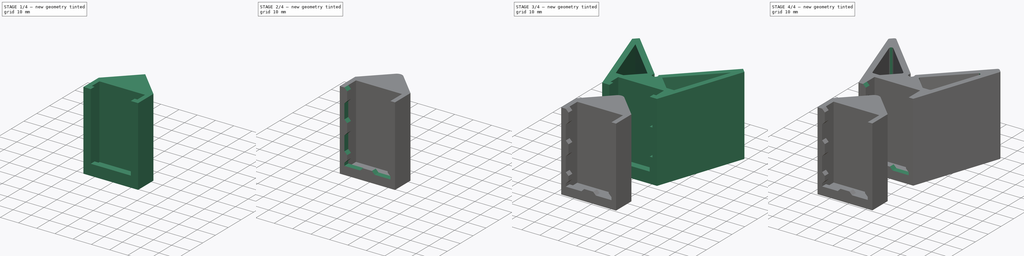
[diagram: build sequence overview — one tinted view per stage of 4, left to right]
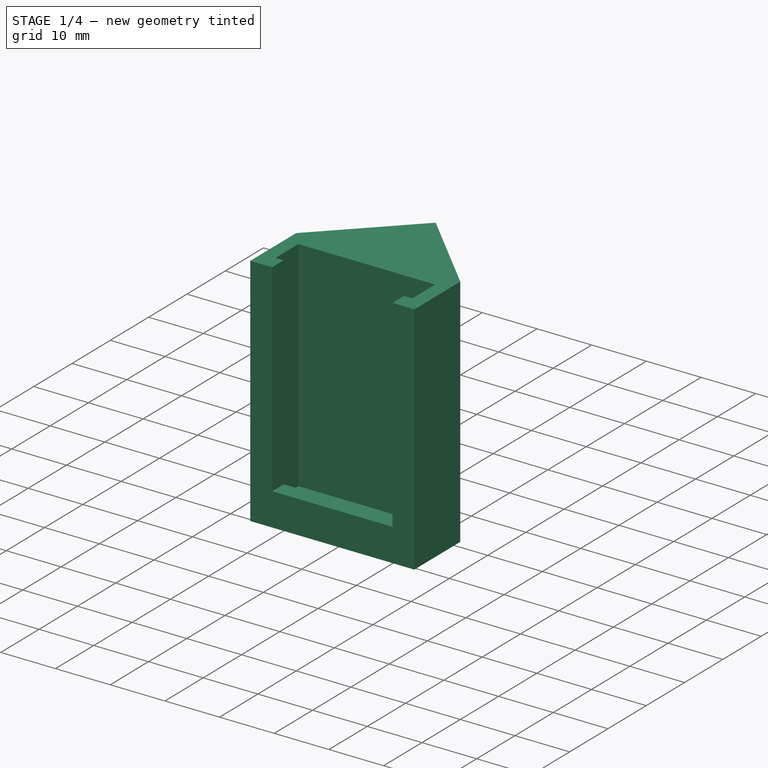
[diagram: stage 1 of 4 — iso view after this stage's code; geometry added in this stage tinted green]
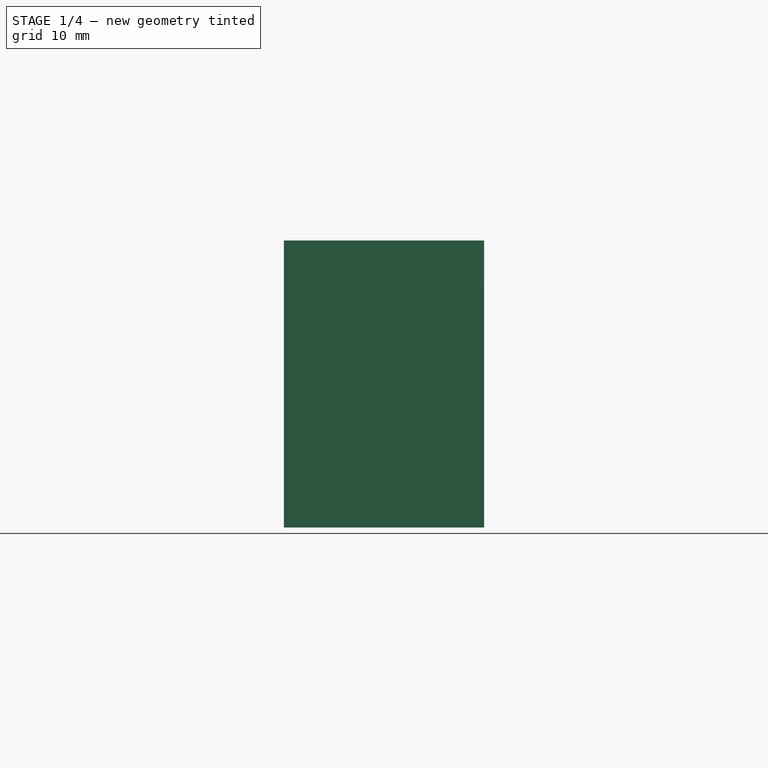
[diagram: stage 1 of 4 — front view after this stage's code; geometry added in this stage tinted green]
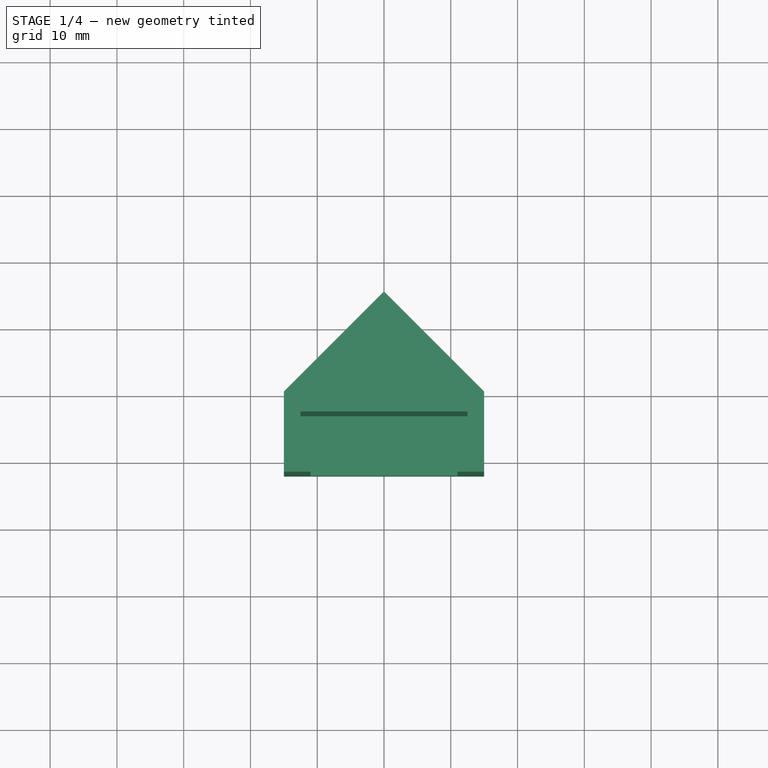
[diagram: stage 1 of 4 — top view after this stage's code; geometry added in this stage tinted green]
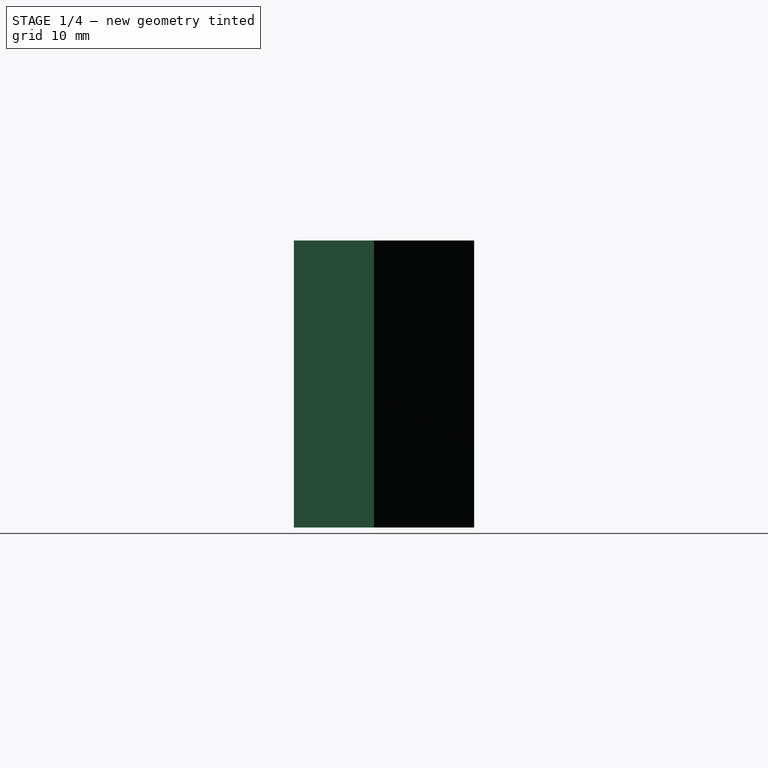
[diagram: stage 1 of 4 — right view after this stage's code; geometry added in this stage tinted green]
FCSTD DOCUMENT  (FreeCAD 0.18R16131 (Git))
Label: clamp
License: All rights reserved
LicenseURL: http://en.wikipedia.org/wiki/All_rights_reserved
objects: Sketcher::SketchObject×9, PartDesign::Pocket×7, PartDesign::Pad×2, PartDesign::Body×2, Part::Chamfer×2, Part::Fillet×2
note: 33 computed .brp shape members not serialized (recipe doc carries the construction recipe); baked Part::Feature solids carry a one-line shape summary decoded from their .brp

FEATURE [Sketcher::SketchObject] Sketch003
  MapMode = 5
  Support = -> [XY_Plane001]
  sketch-geometry (5):
    g0: LineSegment StartX=-15 StartY=-32 StartZ=0 EndX=15 EndY=-32 EndZ=0
    g1: LineSegment StartX=15 StartY=-32 StartZ=0 EndX=15 EndY=-20 EndZ=0
    g2: LineSegment StartX=15 StartY=-20 StartZ=0 EndX=0 EndY=-5 EndZ=0
    g3: LineSegment StartX=0 StartY=-5 StartZ=0 EndX=-15 EndY=-20 EndZ=0
    g4: LineSegment StartX=-15 StartY=-20 StartZ=0 EndX=-15 EndY=-32 EndZ=0
  constraints (13):
    c: Coincident(g0,g1)
    c: Vertical(g1)
    c: Coincident(g1,g2)
    c: PointOnObject(g2,g-2)
    c: Coincident(g2,g3)
    c: Coincident(g3,g4)
    c: Coincident(g4,g0)
    c: Symmetric(g1,g3,g-2)
    c: Symmetric(g0,g0,g-2)
    c: DistanceX(g0,g0) = 30
    c: DistanceY(g1,g1) = 12
    c: DistanceY(g2,g-1) = 5
    c: Angle(g3,g2) = 1.5708
FEATURE [PartDesign::Pad] Pad001
  Length = 43
  Length2 = 100
  Profile = -> Sketch003
  Type = 0
FEATURE [Sketcher::SketchObject] Sketch004
  ExternalGeometry = -> [Pad001]
  MapMode = 5
  Placement = pos=(0,0,43) rot=(0,0,1;0rad)
  Support = -> [Pad001]
  sketch-geometry (8):
    g0: LineSegment StartX=-11 StartY=-32 StartZ=0 EndX=-11 EndY=-29 EndZ=0
    g1: LineSegment StartX=-11 StartY=-29 StartZ=0 EndX=-12.5 EndY=-29 EndZ=0
    g2: LineSegment StartX=-12.5 StartY=-29 StartZ=0 EndX=-12.5 EndY=-23 EndZ=0
    g3: LineSegment StartX=-12.5 StartY=-23 StartZ=0 EndX=12.5 EndY=-23 EndZ=0
    g4: LineSegment StartX=12.5 StartY=-23 StartZ=0 EndX=12.5 EndY=-29 EndZ=0
    g5: LineSegment StartX=12.5 StartY=-29 StartZ=0 EndX=11 EndY=-29 EndZ=0
    g6: LineSegment StartX=11 StartY=-29 StartZ=0 EndX=11 EndY=-32 EndZ=0
    g7: LineSegment StartX=11 StartY=-32 StartZ=0 EndX=-11 EndY=-32 EndZ=0
  constraints (20):
    c: PointOnObject(g0,g-4)
    c: Coincident(g0,g1)
    c: Coincident(g1,g2)
    c: Coincident(g2,g3)
    c: Coincident(g3,g4)
    c: Coincident(g4,g5)
    c: Coincident(g5,g6)
    c: Coincident(g6,g7)
    c: Coincident(g7,g0)
    c: Symmetric(g5,g0,g-2)
    c: Symmetric(g4,g1,g-2)
    c: Symmetric(g3,g2,g-2)
    c: Symmetric(g0,g6,g-2)
    c: Vertical(g6)
    c: Vertical(g4)
    c: Horizontal(g5)
    c: DistanceY(g4,g4) = 6
    c: DistanceY(g6,g6) = 3
    c: DistanceX(g3,g3) = 25
    c: DistanceX(g5,g5) = 1.5
FEATURE [PartDesign::Pocket] Pocket002
  BaseFeature = -> Pad001
  Length = 37
  Length2 = 100
  Profile = -> Sketch004
  Type = 0
FEATURE [Sketcher::SketchObject] Sketch007
  ExternalGeometry = -> [Pocket002]
  MapMode = 5
  Placement = pos=(0,0,6) rot=(0,0,1;0rad)
  Support = -> [Pocket002]
  sketch-geometry (4):
    g0: LineSegment StartX=-12.5 StartY=-23 StartZ=0 EndX=12.5 EndY=-23 EndZ=0
    g1: LineSegment StartX=12.5 StartY=-23 StartZ=0 EndX=12.5 EndY=-29 EndZ=0
    g2: LineSegment StartX=12.5 StartY=-29 StartZ=0 EndX=-12.5 EndY=-29 EndZ=0
    g3: LineSegment StartX=-12.5 StartY=-29 StartZ=0 EndX=-12.5 EndY=-23 EndZ=0
  constraints (11):
    c: Coincident(g0,g1)
    c: Coincident(g1,g2)
    c: Coincident(g2,g3)
    c: Coincident(g3,g0)
    c: Horizontal(g2)
    c: Vertical(g1)
    c: Vertical(g3)
    c: Symmetric(g0,g0,g-2)
    c: DistanceY(g1,g1) = 6
    c: DistanceY(g-3,g1) = 3
    c: DistanceX(g2,g2) = 25
FEATURE [PartDesign::Pocket] Pocket005
  BaseFeature = -> Pocket002
  Length = 3
  Length2 = 100
  Profile = -> Sketch007
  Type = 0
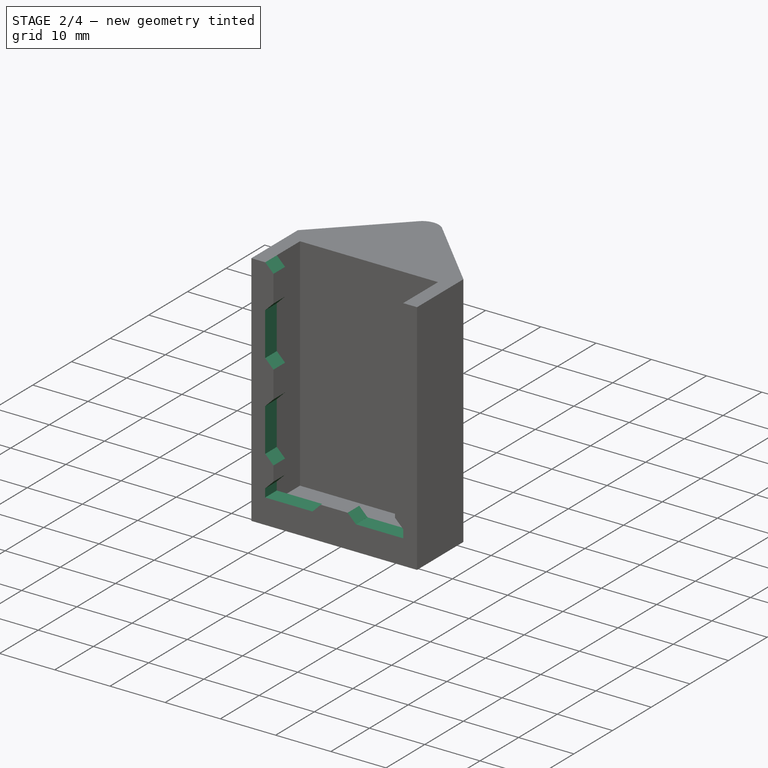
[diagram: stage 2 of 4 — iso view after this stage's code; geometry added in this stage tinted green]
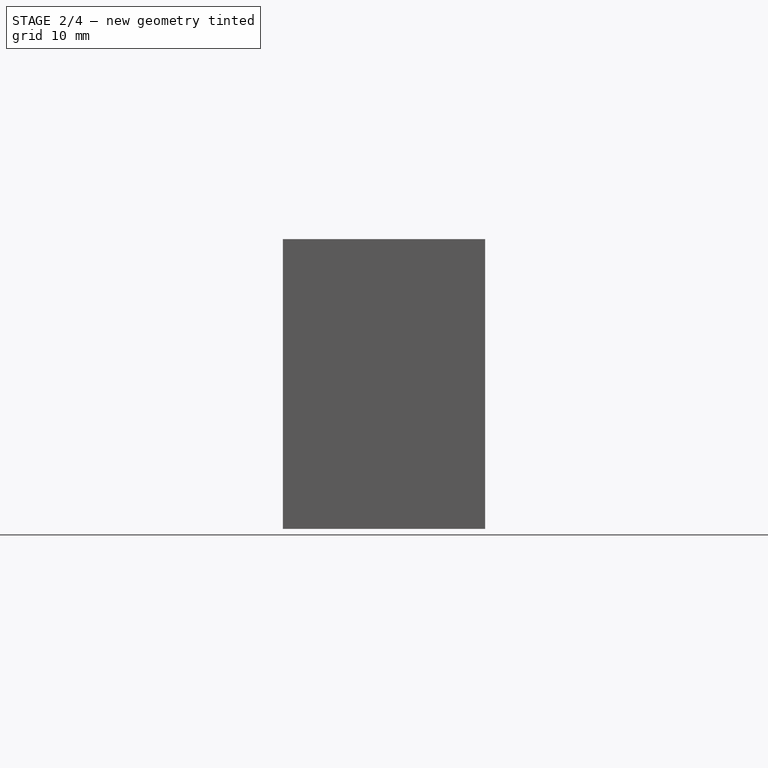
[diagram: stage 2 of 4 — front view after this stage's code; geometry added in this stage tinted green]
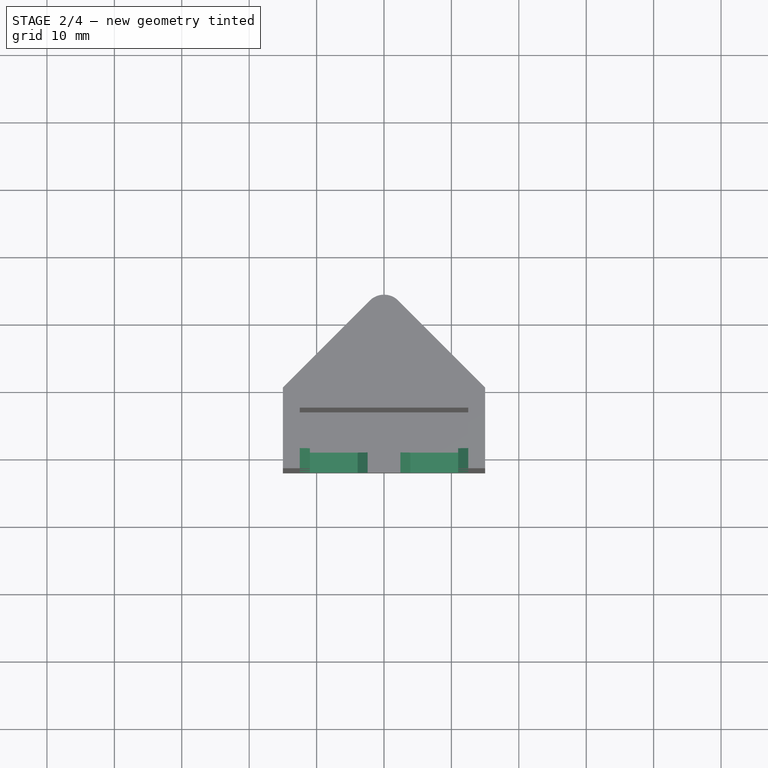
[diagram: stage 2 of 4 — top view after this stage's code; geometry added in this stage tinted green]
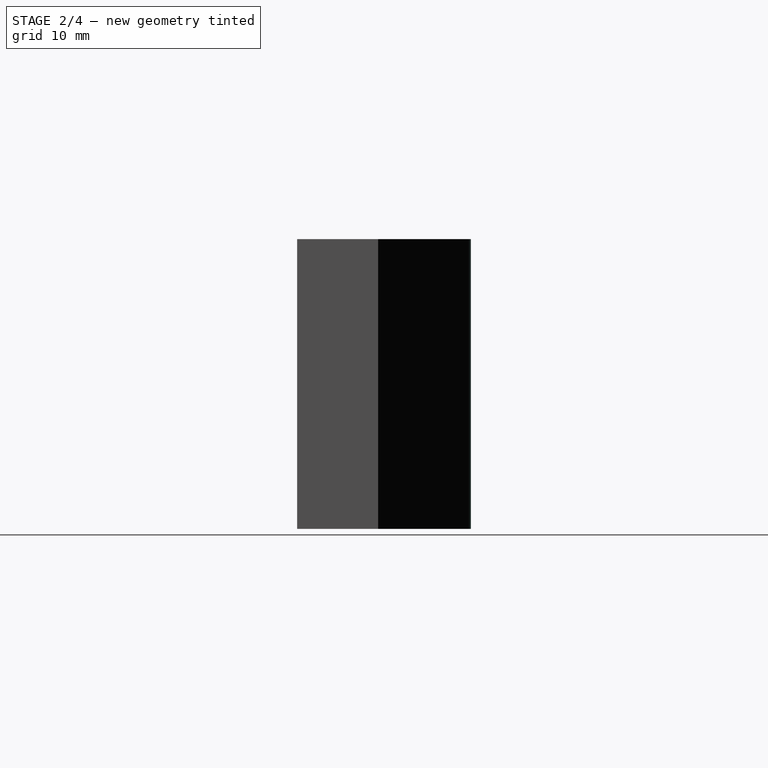
[diagram: stage 2 of 4 — right view after this stage's code; geometry added in this stage tinted green]
FEATURE [Sketcher::SketchObject] Sketch008
  ExternalGeometry = -> [Pocket005]
  MapMode = 5
  Placement = pos=(0,-32,0) rot=(1,0,0;1.5708rad)
  Support = -> [Pocket005]
  sketch-geometry (29):
    g0: LineSegment StartX=-12.5 StartY=35.1573 StartZ=0 EndX=-11 EndY=35.1573 EndZ=0
    g1: LineSegment StartX=-11 StartY=35.1573 StartZ=0 EndX=-11 EndY=27.3146 EndZ=0
    g2: LineSegment StartX=-11 StartY=27.3146 StartZ=0 EndX=-12.5 EndY=27.3146 EndZ=0
    g3: LineSegment StartX=-12.5 StartY=27.3146 StartZ=0 EndX=-12.5 EndY=35.1573 EndZ=0
    g4: LineSegment StartX=-12.5 StartY=19.4719 StartZ=0 EndX=-11 EndY=19.4719 EndZ=0
    g5: LineSegment StartX=-11 StartY=19.4719 StartZ=0 EndX=-11 EndY=11.6292 EndZ=0
    g6: LineSegment StartX=-11 StartY=11.6292 StartZ=0 EndX=-12.5 EndY=11.6292 EndZ=0
    g7: LineSegment StartX=-12.5 StartY=11.6292 StartZ=0 EndX=-12.5 EndY=19.4719 EndZ=0
    g8: LineSegment StartX=12.5 StartY=19.4719 StartZ=0 EndX=11 EndY=19.4719 EndZ=0
    g9: LineSegment StartX=11 StartY=19.4719 StartZ=0 EndX=11 EndY=11.6292 EndZ=0
    g10: LineSegment StartX=11 StartY=11.6292 StartZ=0 EndX=12.5 EndY=11.6292 EndZ=0
    g11: LineSegment StartX=12.5 StartY=11.6292 StartZ=0 EndX=12.5 EndY=19.4719 EndZ=0
    g12: LineSegment StartX=12.5 StartY=35.1573 StartZ=0 EndX=11 EndY=35.1573 EndZ=0
    g13: LineSegment StartX=11 StartY=35.1573 StartZ=0 EndX=11 EndY=27.3146 EndZ=0
    g14: LineSegment StartX=11 StartY=27.3146 StartZ=0 EndX=12.5 EndY=27.3146 EndZ=0
    g15: LineSegment StartX=12.5 StartY=27.3146 StartZ=0 EndX=12.5 EndY=35.1573 EndZ=0
    g16: LineSegment StartX=-3.92135 StartY=6 StartZ=0 EndX=-12.5 EndY=6 EndZ=0
    g17: LineSegment StartX=-12.5 StartY=6 StartZ=0 EndX=-12.5 EndY=4.5 EndZ=0
    g18: LineSegment StartX=-12.5 StartY=4.5 StartZ=0 EndX=-3.92135 EndY=4.5 EndZ=0
    g19: LineSegment StartX=-3.92135 StartY=4.5 StartZ=0 EndX=-3.92135 EndY=6 EndZ=0
    g20: LineSegment StartX=12.5 StartY=4.5 StartZ=0 EndX=3.92135 EndY=4.5 EndZ=0
    g21: LineSegment StartX=3.92135 StartY=4.5 StartZ=0 EndX=3.92135 EndY=6 EndZ=0
    g22: LineSegment StartX=3.92135 StartY=6 StartZ=0 EndX=12.5 EndY=6 EndZ=0
    g23: LineSegment StartX=12.5 StartY=6 StartZ=0 EndX=12.5 EndY=4.5 EndZ=0
    g24: LineSegment [constr] StartX=-11 StartY=43 StartZ=0 EndX=-11 EndY=35.1573 EndZ=0
    g25: LineSegment [constr] StartX=-11 StartY=27.3146 StartZ=0 EndX=-11 EndY=19.4719 EndZ=0
    g26: LineSegment [constr] StartX=11 StartY=43 StartZ=0 EndX=11 EndY=35.1573 EndZ=0
    g27: LineSegment [constr] StartX=11 StartY=27.3146 StartZ=0 EndX=11 EndY=19.4719 EndZ=0
    g28: LineSegment [constr] StartX=-3.92135 StartY=6 StartZ=0 EndX=3.92135 EndY=6 EndZ=0
  constraints (74):
    c: Coincident(g0,g1)
    c: Coincident(g1,g2)
    c: Coincident(g2,g3)
    c: Coincident(g3,g0)
    c: Horizontal(g0)
    c: Horizontal(g2)
    c: Vertical(g3)
    c: Coincident(g4,g5)
    c: Coincident(g5,g6)
    c: Coincident(g6,g7)
    c: Coincident(g7,g4)
    c: Horizontal(g4)
    c: Horizontal(g6)
    c: Vertical(g7)
    c: Coincident(g8,g9)
    c: Coincident(g9,g10)
    c: Coincident(g10,g11)
    c: Coincident(g11,g8)
    c: Horizontal(g10)
    c: Vertical(g11)
    c: Coincident(g12,g13)
    c: Coincident(g13,g14)
    c: Coincident(g14,g15)
    c: Coincident(g15,g12)
    c: Horizontal(g12)
    c: Horizontal(g14)
    c: Vertical(g15)
    c: Coincident(g16,g17)
    c: Coincident(g17,g18)
    c: Coincident(g18,g19)
    c: Coincident(g19,g16)
    c: Horizontal(g16)
    c: Horizontal(g18)
    c: Vertical(g17)
    c: Vertical(g19)
    c: Coincident(g20,g21)
    c: Coincident(g21,g22)
    c: Coincident(g22,g23)
    c: Coincident(g23,g20)
    c: Horizontal(g20)
    c: Horizontal(g22)
    c: Vertical(g21)
    c: Vertical(g23)
    c: Symmetric(g18,g20,g-2)
    c: PointOnObject(g21,g-5)
    c: Tangent(g5,g-3)
    c: Tangent(g1,g-3)
    c: Symmetric(g12,g0,g-2)
    c: Symmetric(g13,g1,g-2)
    c: Symmetric(g8,g4,g-2)
    c: Symmetric(g9,g5,g-2)
    c: Coincident(g24,g-3)
    c: Coincident(g24,g0)
    c: Coincident(g25,g1)
    c: Coincident(g25,g4)
    c: Coincident(g26,g-4)
    c: Coincident(g26,g12)
    c: Coincident(g27,g13)
    c: Coincident(g27,g8)
    c: Equal(g9,g27)
    c: Equal(g27,g13)
    c: Equal(g13,g26)
    c: Equal(g26,g24)
    c: Equal(g24,g1)
    c: Equal(g1,g25)
    c: Equal(g25,g5)
    c: Coincident(g28,g21)
    c: Coincident(g28,g16)
    c: Equal(g28,g5)
    c: Symmetric(g4,g8,g-2)
    c: Symmetric(g2,g14,g-2)
    c: DistanceX(g0,g0) = 1.5
    c: DistanceX(g16,g-5) = 1.5
    c: Symmetric(g22,g16,g-2)
FEATURE [PartDesign::Pocket] Pocket006
  BaseFeature = -> Pocket005
  Length = 3
  Length2 = 100
  Profile = -> Sketch008
  Type = 0
FEATURE [PartDesign::Body] Body  label="piece01"
  Group = -> [Sketch,Pad,Sketch001,Pocket,Sketch002,Pocket001,Sketch005,Pocket003,Sketch006,Pocket004]
  Origin = -> Origin
  Tip = -> Pocket004
FEATURE [Part::Chamfer] Chamfer001
  Base = -> Pocket006
  Edges = 14 edges r=1.49: [Edge42,Edge48,Edge49,Edge55,Edge57,Edge63,Edge65,Edge73,Edge76,Edge84,Edge85,Edge91,Edge93,Edge99]
FEATURE [Part::Fillet] Fillet001  label="final02"
  Base = -> Chamfer001
  Edges = 1 edges r=3: [Edge146]
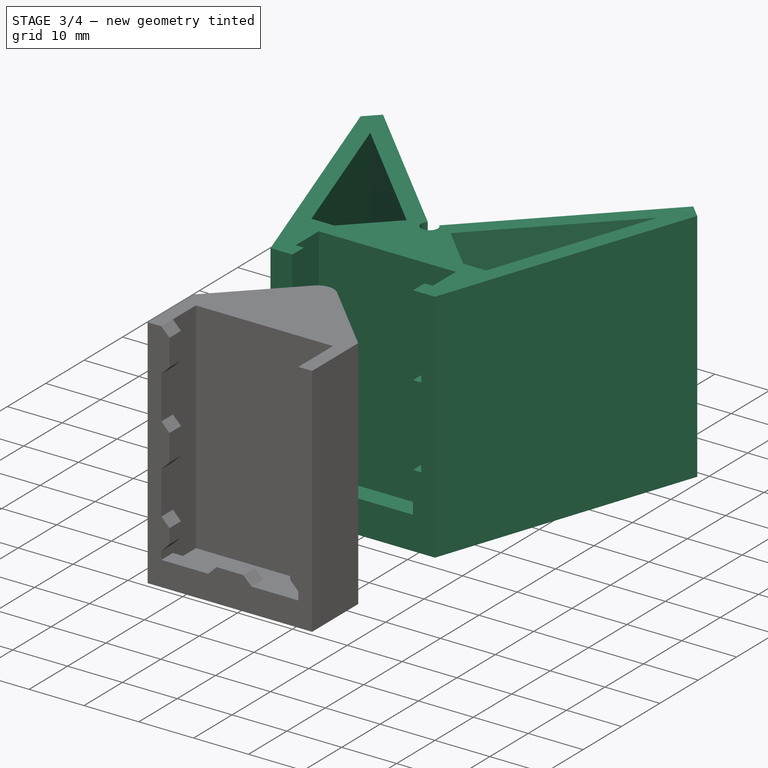
[diagram: stage 3 of 4 — iso view after this stage's code; geometry added in this stage tinted green]
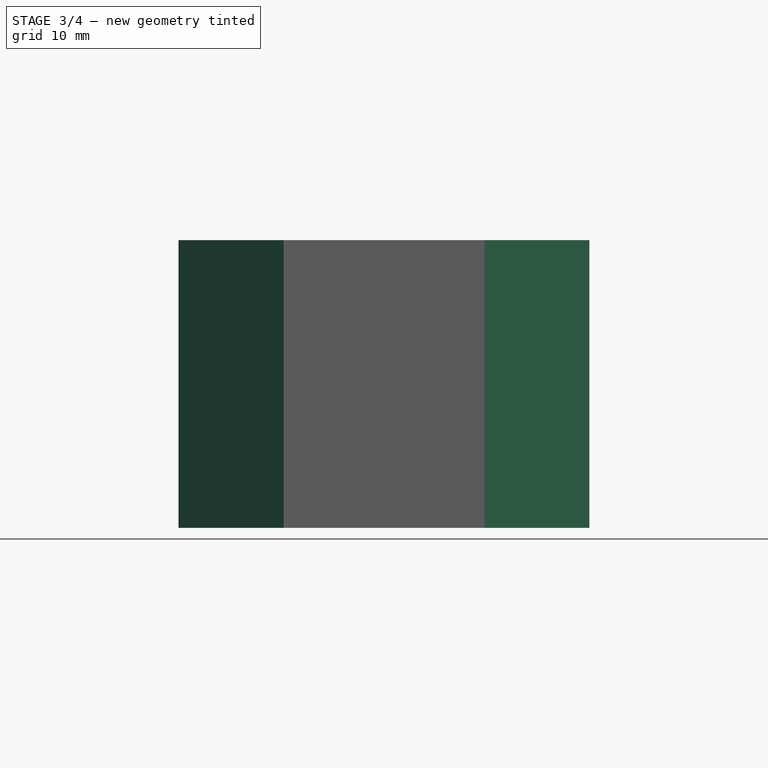
[diagram: stage 3 of 4 — front view after this stage's code; geometry added in this stage tinted green]
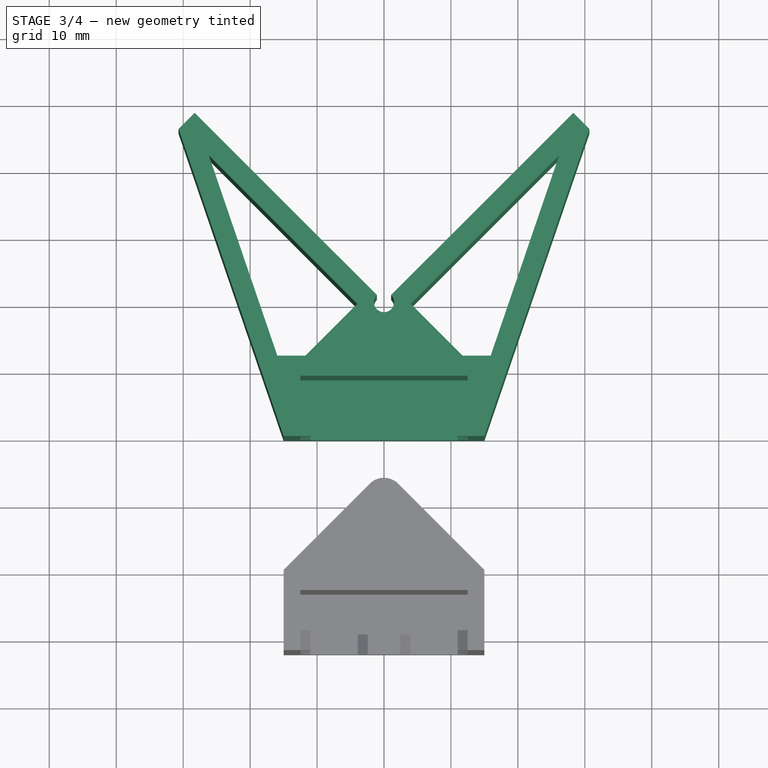
[diagram: stage 3 of 4 — top view after this stage's code; geometry added in this stage tinted green]
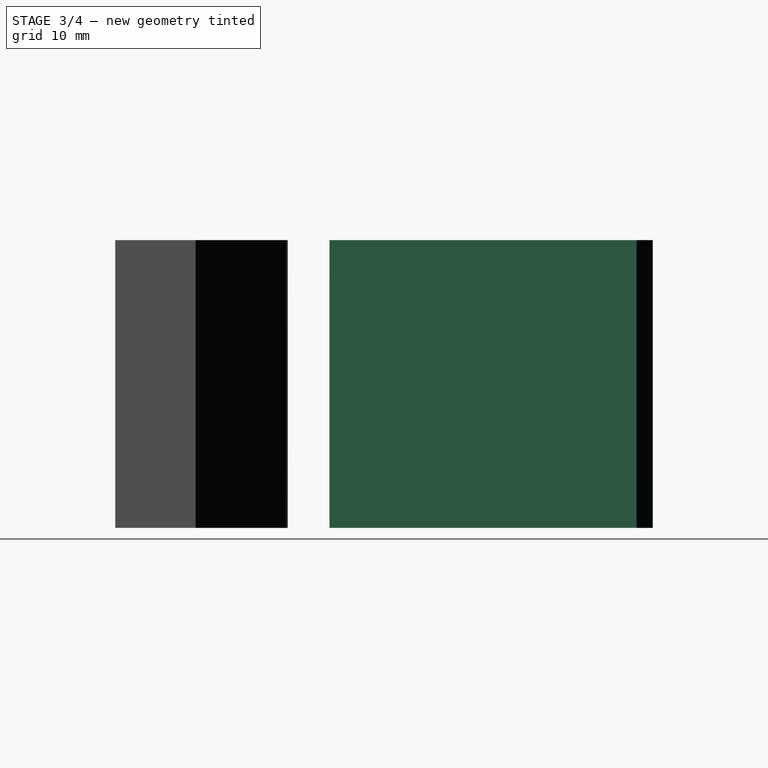
[diagram: stage 3 of 4 — right view after this stage's code; geometry added in this stage tinted green]
FEATURE [PartDesign::Body] Body001  label="piece02"
  Group = -> [Sketch003,Pad001,Sketch004,Pocket002,Sketch007,Pocket005,Sketch008,Pocket006]
  Origin = -> Origin001
  Tip = -> Pocket006
FEATURE [Sketcher::SketchObject] Sketch
  MapMode = 5
  Support = -> [XY_Plane]
  sketch-geometry (21):
    g0: LineSegment StartX=-15 StartY=0 StartZ=0 EndX=15 EndY=0 EndZ=0
    g1: LineSegment StartX=15 StartY=0 StartZ=0 EndX=30.6877 EndY=45.8809 EndZ=0
    g2: LineSegment StartX=30.6877 StartY=45.8809 StartZ=0 EndX=28.2843 EndY=48.2843 EndZ=0
    g3: LineSegment StartX=28.2843 StartY=48.2843 StartZ=0 EndX=1.06066 EndY=21.0607 EndZ=0
    g4: LineSegment StartX=-1.06066 StartY=21.0607 StartZ=0 EndX=-28.2843 EndY=48.2843 EndZ=0
    g5: LineSegment StartX=-28.2843 StartY=48.2843 StartZ=0 EndX=-30.6877 EndY=45.8809 EndZ=0
    g6: LineSegment StartX=-30.6877 StartY=45.8809 StartZ=0 EndX=-15 EndY=0 EndZ=0
    g7: LineSegment [constr] StartX=-1.06066 StartY=21.0607 StartZ=0 EndX=-2e-16 EndY=20 EndZ=0
    g8: LineSegment [constr] StartX=-2e-16 StartY=20 StartZ=0 EndX=1.06066 EndY=21.0607 EndZ=0
    g9: ArcOfCircle CenterX=-2e-16 CenterY=20 CenterZ=0 NormalX=0 NormalY=0 NormalZ=1 AngleXU=0 Radius=1.5 StartAngle=2.35619 EndAngle=7.06858
    g10: LineSegment StartX=-26.163 StartY=41.9203 StartZ=0 EndX=-15.9325 EndY=12 EndZ=0
    g11: LineSegment StartX=-15.9325 StartY=12 StartZ=0 EndX=-11.7574 EndY=12 EndZ=0
    g12: LineSegment StartX=-11.7574 StartY=12 StartZ=0 EndX=-4 EndY=19.7574 EndZ=0
    g13: LineSegment StartX=-4 StartY=19.7574 StartZ=0 EndX=-26.163 EndY=41.9203 EndZ=0
    g14: LineSegment StartX=26.163 StartY=41.9203 StartZ=0 EndX=4 EndY=19.7574 EndZ=0
    g15: LineSegment StartX=4 StartY=19.7574 StartZ=0 EndX=11.7574 EndY=12 EndZ=0
    g16: LineSegment StartX=11.7574 StartY=12 StartZ=0 EndX=15.9325 EndY=12 EndZ=0
    g17: LineSegment StartX=15.9325 StartY=12 StartZ=0 EndX=26.163 EndY=41.9203 EndZ=0
    g18: LineSegment [constr] StartX=-26.163 StartY=41.9203 StartZ=0 EndX=-24.0416 EndY=44.0416 EndZ=0
    g19: LineSegment [constr] StartX=-26.163 StartY=41.9203 StartZ=0 EndX=-29.0016 EndY=40.9497 EndZ=0
    g20: LineSegment [constr] StartX=26.163 StartY=41.9203 StartZ=0 EndX=30.4056 EndY=46.163 EndZ=0
  constraints (54):
    c: Coincident(g0,g1)
    c: Coincident(g1,g2)
    c: Coincident(g2,g3)
    c: Coincident(g4,g5)
    c: Coincident(g5,g6)
    c: Coincident(g6,g0)
    c: Symmetric(g0,g0,g-2)
    c: DistanceX(g0,g0) = 30
    c: Symmetric(g4,g3,g-2)
    c: Symmetric(g2,g4,g-2)
    c: Symmetric(g5,g1,g-2)
    c: Perpendicular(g5,g4)
    c: Perpendicular(g4,g3)
    c: Coincident(g7,g8)
    c: Coincident(g7,g4)
    c: Coincident(g8,g3)
    c: Parallel(g3,g8)
    c: Coincident(g9,g7)
    c: Coincident(g9,g3)
    c: Coincident(g4,g9)
    c: Radius(g9) = 1.5
    c: Coincident(g10,g11)
    c: Coincident(g11,g12)
    c: Coincident(g12,g13)
    c: Coincident(g13,g10)
    c: Coincident(g14,g15)
    c: Coincident(g15,g16)
    c: Coincident(g16,g17)
    c: Coincident(g17,g14)
    c: Symmetric(g10,g14,g-2)
    c: Symmetric(g12,g14,g-2)
    c: Symmetric(g15,g11,g-2)
    c: Symmetric(g10,g16,g-2)
    c: Horizontal(g11)
    c: Parallel(g14,g3)
    c: Parallel(g10,g6)
    c: Perpendicular(g14,g15)
    c: PointOnObject(g18,g4)
    c: Coincident(g18,g10)
    c: Perpendicular(g4,g18)
    c: Distance(g18) = 3
    c: Coincident(g19,g10)
    c: PointOnObject(g19,g6)
    c: Perpendicular(g10,g19)
    c: Distance(g19) = 3
    c: PointOnObject(g20,g2)
    c: Coincident(g20,g14)
    c: Parallel(g20,g3)
    c: Distance(g9,g2) = 40
    c: DistanceX(g12,g14) = 8
    c: DistanceY(g0,g16) = 12
    c: DistanceY(g0,g9) = 20
    c: PointOnObject(g-1,g0)
    c: Distance(g20) = 6
FEATURE [PartDesign::Pad] Pad
  Length = 43
  Length2 = 100
  Profile = -> Sketch
  Type = 0
FEATURE [Sketcher::SketchObject] Sketch001
  ExternalGeometry = -> [Pad]
  MapMode = 5
  Placement = pos=(0,0,43) rot=(0,0,1;0rad)
  Support = -> [Pad]
  sketch-geometry (8):
    g0: LineSegment StartX=-12.5 StartY=9 StartZ=0 EndX=12.5 EndY=9 EndZ=0
    g1: LineSegment StartX=12.5 StartY=9 StartZ=0 EndX=12.5 EndY=3 EndZ=0
    g2: LineSegment StartX=12.5 StartY=3 StartZ=0 EndX=11 EndY=3 EndZ=0
    g3: LineSegment StartX=11 StartY=3 StartZ=0 EndX=11 EndY=0 EndZ=0
    g4: LineSegment StartX=11 StartY=0 StartZ=0 EndX=-11 EndY=0 EndZ=0
    g5: LineSegment StartX=-11 StartY=0 StartZ=0 EndX=-11 EndY=3 EndZ=0
    g6: LineSegment StartX=-11 StartY=3 StartZ=0 EndX=-12.5 EndY=3 EndZ=0
    g7: LineSegment StartX=-12.5 StartY=3 StartZ=0 EndX=-12.5 EndY=9 EndZ=0
  constraints (20):
    c: Coincident(g0,g1)
    c: Vertical(g1)
    c: Coincident(g1,g2)
    c: Horizontal(g2)
    c: Coincident(g2,g3)
    c: Vertical(g3)
    c: Coincident(g3,g4)
    c: Coincident(g4,g5)
    c: Coincident(g5,g6)
    c: Coincident(g6,g7)
    c: Coincident(g7,g0)
    c: Symmetric(g3,g4,g-2)
    c: Symmetric(g2,g5,g-2)
    c: Symmetric(g1,g6,g-2)
    c: Symmetric(g0,g0,g-2)
    c: DistanceX(g0,g0) = 25
    c: DistanceX(g2,g2) = 1.5
    c: PointOnObject(g3,g-3)
    c: DistanceY(g7,g7) = 6
    c: DistanceY(g5,g5) = 3
FEATURE [PartDesign::Pocket] Pocket
  BaseFeature = -> Pad
  Length = 37
  Length2 = 100
  Profile = -> Sketch001
  Type = 0
FEATURE [Sketcher::SketchObject] Sketch002
  ExternalGeometry = -> [Pocket]
  MapMode = 5
  Placement = pos=(0,0,0) rot=(1,0,0;1.5708rad)
  Support = -> [Pocket]
  sketch-geometry (22):
    g0: LineSegment StartX=-11 StartY=35.6 StartZ=0 EndX=-12.5 EndY=35.6 EndZ=0
    g1: LineSegment StartX=-12.5 StartY=35.6 StartZ=0 EndX=-12.5 EndY=28.2 EndZ=0
    g2: LineSegment StartX=-12.5 StartY=28.2 StartZ=0 EndX=-11 EndY=28.2 EndZ=0
    g3: LineSegment StartX=-11 StartY=28.2 StartZ=0 EndX=-11 EndY=35.6 EndZ=0
    g4: LineSegment StartX=-11 StartY=20.8 StartZ=0 EndX=-12.5 EndY=20.8 EndZ=0
    g5: LineSegment StartX=-12.5 StartY=20.8 StartZ=0 EndX=-12.5 EndY=13.4 EndZ=0
    g6: LineSegment StartX=-12.5 StartY=13.4 StartZ=0 EndX=-11 EndY=13.4 EndZ=0
    g7: LineSegment StartX=-11 StartY=13.4 StartZ=0 EndX=-11 EndY=20.8 EndZ=0
    g8: LineSegment StartX=12.5 StartY=35.6 StartZ=0 EndX=11 EndY=35.6 EndZ=0
    g9: LineSegment StartX=11 StartY=35.6 StartZ=0 EndX=11 EndY=28.2 EndZ=0
    g10: LineSegment StartX=11 StartY=28.2 StartZ=0 EndX=12.5 EndY=28.2 EndZ=0
    g11: LineSegment StartX=12.5 StartY=28.2 StartZ=0 EndX=12.5 EndY=35.6 EndZ=0
    g12: LineSegment StartX=12.5 StartY=20.8 StartZ=0 EndX=11 EndY=20.8 EndZ=0
    g13: LineSegment StartX=11 StartY=20.8 StartZ=0 EndX=11 EndY=13.4 EndZ=0
    g14: LineSegment StartX=11 StartY=13.4 StartZ=0 EndX=12.5 EndY=13.4 EndZ=0
    g15: LineSegment StartX=12.5 StartY=13.4 StartZ=0 EndX=12.5 EndY=20.8 EndZ=0
    g16: LineSegment [constr] StartX=-11 StartY=35.6 StartZ=0 EndX=-11 EndY=43 EndZ=0
    g17: LineSegment [constr] StartX=11 StartY=35.6 StartZ=0 EndX=11 EndY=43 EndZ=0
    g18: LineSegment [constr] StartX=-11 StartY=20.8 StartZ=0 EndX=-11 EndY=28.2 EndZ=0
    g19: LineSegment [constr] StartX=11 StartY=20.8 StartZ=0 EndX=11 EndY=28.2 EndZ=0
    g20: LineSegment [constr] StartX=-11 StartY=6 StartZ=0 EndX=-11 EndY=13.4 EndZ=0
    g21: LineSegment [constr] StartX=11 StartY=6 StartZ=0 EndX=11 EndY=13.4 EndZ=0
  constraints (58):
    c: Coincident(g0,g1)
    c: Coincident(g1,g2)
    c: Coincident(g2,g3)
    c: Coincident(g3,g0)
    c: Horizontal(g0)
    c: Horizontal(g2)
    c: Vertical(g1)
    c: Vertical(g3)
    c: PointOnObject(g0,g-4)
    c: Coincident(g4,g5)
    c: Coincident(g5,g6)
    c: Coincident(g6,g7)
    c: Coincident(g7,g4)
    c: Horizontal(g4)
    c: Horizontal(g6)
    c: Vertical(g5)
    c: Vertical(g7)
    c: PointOnObject(g4,g-4)
    c: Coincident(g8,g9)
    c: Coincident(g9,g10)
    c: Coincident(g10,g11)
    c: Coincident(g11,g8)
    c: Horizontal(g10)
    c: Coincident(g12,g13)
    c: Coincident(g13,g14)
    c: Coincident(g14,g15)
    c: Coincident(g15,g12)
    c: Horizontal(g14)
    c: Vertical(g15)
    c: Symmetric(g13,g6,g-2)
    c: Symmetric(g12,g4,g-2)
    c: Symmetric(g9,g2,g-2)
    c: Symmetric(g8,g0,g-2)
    c: Equal(g3,g9)
    c: Equal(g9,g13)
    c: Equal(g13,g7)
    c: Coincident(g20,g6)
    c: Coincident(g20,g-4)
    c: Coincident(g21,g-3)
    c: Coincident(g21,g13)
    c: Coincident(g18,g4)
    c: Coincident(g18,g2)
    c: Coincident(g19,g12)
    c: Coincident(g19,g9)
    c: Coincident(g17,g8)
    c: Coincident(g-3,g17)
    c: Coincident(g16,g0)
    c: Coincident(g16,g-4)
    c: Equal(g16,g3)
    c: Equal(g3,g18)
    c: Equal(g18,g7)
    c: Equal(g7,g20)
    c: Symmetric(g8,g0,g-2)
    c: Symmetric(g12,g4,g-2)
    c: Equal(g12,g10)
    c: Equal(g10,g2)
    c: Equal(g2,g4)
    c: DistanceX(g0,g0) = 1.5
FEATURE [PartDesign::Pocket] Pocket001
  BaseFeature = -> Pocket
  Length = 3
  Length2 = 100
  Profile = -> Sketch002
  Type = 0
FEATURE [Sketcher::SketchObject] Sketch005
  MapMode = 5
  Placement = pos=(0,0,6) rot=(0,0,1;0rad)
  Support = -> [Pocket001]
  sketch-geometry (4):
    g0: LineSegment StartX=-12.5 StartY=9 StartZ=0 EndX=12.5 EndY=9 EndZ=0
    g1: LineSegment StartX=12.5 StartY=9 StartZ=0 EndX=12.5 EndY=3 EndZ=0
    g2: LineSegment StartX=12.5 StartY=3 StartZ=0 EndX=-12.5 EndY=3 EndZ=0
    g3: LineSegment StartX=-12.5 StartY=3 StartZ=0 EndX=-12.5 EndY=9 EndZ=0
  constraints (11):
    c: Coincident(g0,g1)
    c: Coincident(g1,g2)
    c: Coincident(g2,g3)
    c: Coincident(g3,g0)
    c: Horizontal(g0)
    c: Vertical(g1)
    c: Vertical(g3)
    c: Symmetric(g1,g2,g-2)
    c: DistanceX(g2,g2) = 25
    c: DistanceY(g-1,g1) = 3
    c: DistanceY(g3,g3) = 6
FEATURE [PartDesign::Pocket] Pocket003
  BaseFeature = -> Pocket001
  Length = 3
  Length2 = 100
  Profile = -> Sketch005
  Type = 0
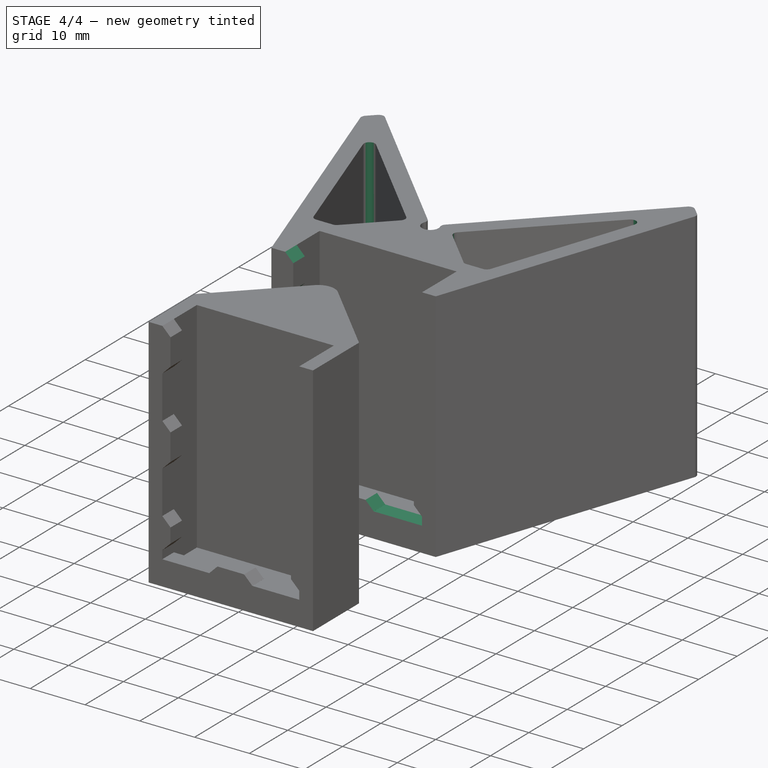
[diagram: stage 4 of 4 — iso view after this stage's code; geometry added in this stage tinted green]
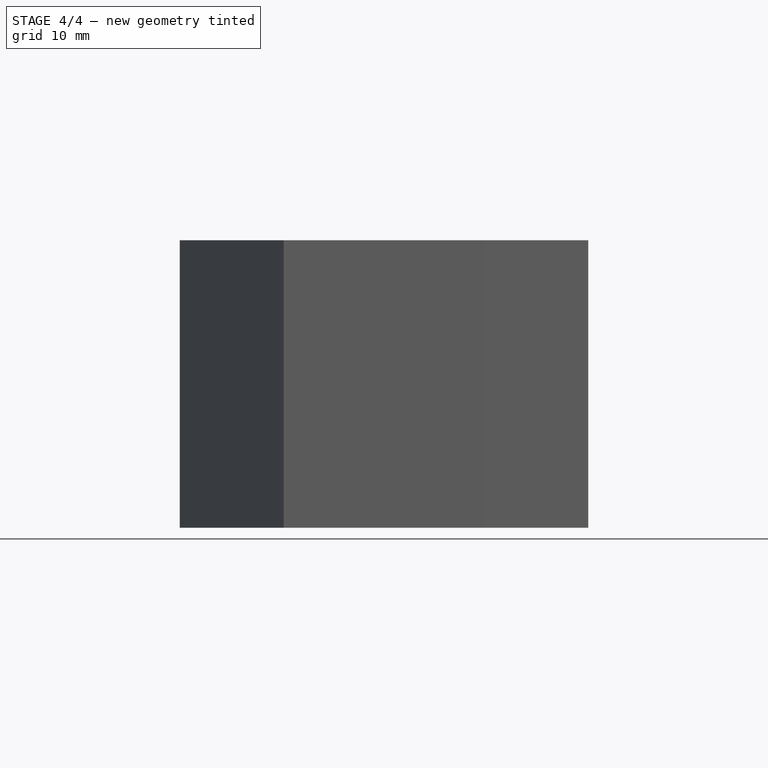
[diagram: stage 4 of 4 — front view after this stage's code; geometry added in this stage tinted green]
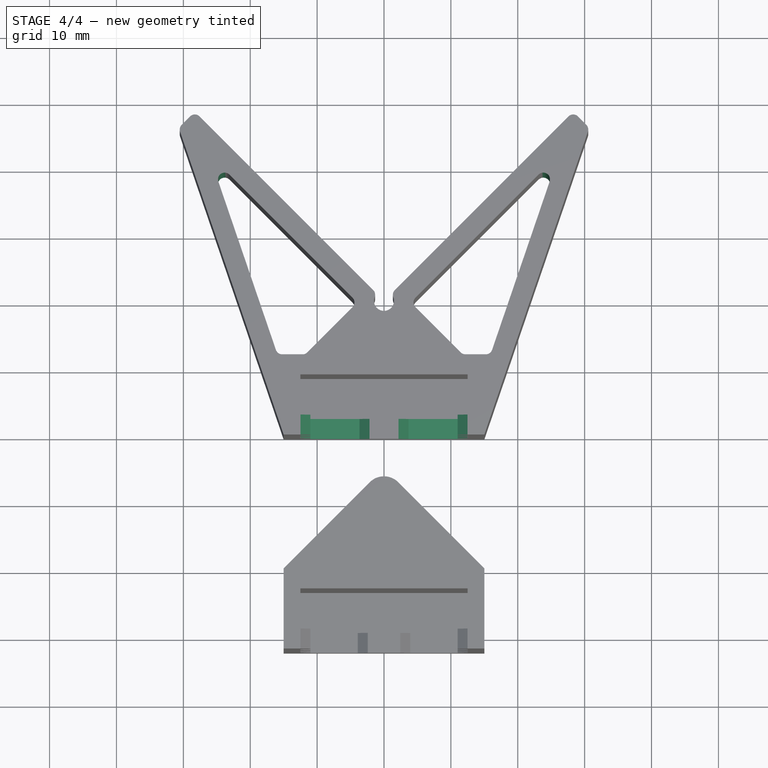
[diagram: stage 4 of 4 — top view after this stage's code; geometry added in this stage tinted green]
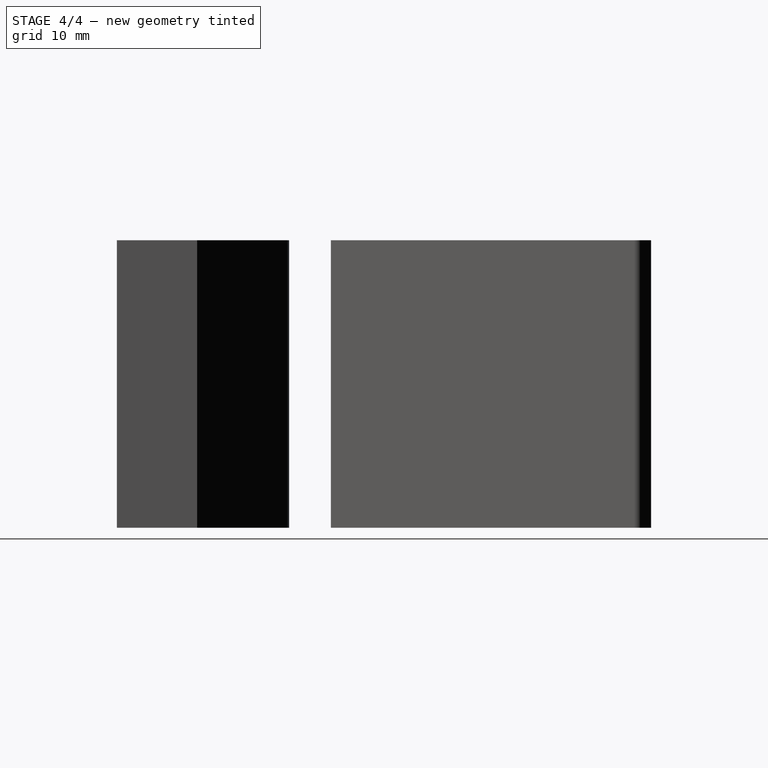
[diagram: stage 4 of 4 — right view after this stage's code; geometry added in this stage tinted green]
FEATURE [Sketcher::SketchObject] Sketch006
  ExternalGeometry = -> [Pocket003]
  MapMode = 5
  Placement = pos=(0,0,0) rot=(1,0,0;1.5708rad)
  Support = -> [Pocket003]
  sketch-geometry (13):
    g0: LineSegment StartX=-11 StartY=6 StartZ=0 EndX=-12.5 EndY=6 EndZ=0
    g1: LineSegment StartX=-12.5 StartY=6 StartZ=0 EndX=-12.5 EndY=4.5 EndZ=0
    g2: LineSegment StartX=-12.5 StartY=4.5 StartZ=0 EndX=-3.66667 EndY=4.5 EndZ=0
    g3: LineSegment StartX=-3.66667 StartY=4.5 StartZ=0 EndX=-3.66667 EndY=6 EndZ=0
    g4: LineSegment StartX=3.66667 StartY=6 StartZ=0 EndX=3.66667 EndY=4.5 EndZ=0
    g5: LineSegment StartX=3.66667 StartY=4.5 StartZ=0 EndX=12.5 EndY=4.5 EndZ=0
    g6: LineSegment StartX=12.5 StartY=4.5 StartZ=0 EndX=12.5 EndY=6 EndZ=0
    g7: LineSegment StartX=12.5 StartY=6 StartZ=0 EndX=11 EndY=6 EndZ=0
    g8: LineSegment [constr] StartX=-11 StartY=6 StartZ=0 EndX=-3.66667 EndY=6 EndZ=0
    g9: LineSegment [constr] StartX=3.66667 StartY=6 StartZ=0 EndX=11 EndY=6 EndZ=0
    g10: LineSegment StartX=-11 StartY=6 StartZ=0 EndX=-3.66667 EndY=6 EndZ=0
    g11: LineSegment StartX=3.66667 StartY=6 StartZ=0 EndX=11 EndY=6 EndZ=0
    g12: LineSegment [constr] StartX=-3.66667 StartY=6 StartZ=0 EndX=3.66667 EndY=6 EndZ=0
  constraints (33):
    c: Coincident(g-3,g0)
    c: Horizontal(g0)
    c: Coincident(g0,g1)
    c: Vertical(g1)
    c: Coincident(g1,g2)
    c: Horizontal(g2)
    c: Coincident(g2,g3)
    c: PointOnObject(g3,g-3)
    c: Vertical(g3)
    c: PointOnObject(g4,g-3)
    c: Vertical(g4)
    c: Coincident(g4,g5)
    c: Horizontal(g5)
    c: Coincident(g5,g6)
    c: Vertical(g6)
    c: Coincident(g6,g7)
    c: Coincident(g7,g-3)
    c: DistanceX(g0,g0) = 1.5
    c: Symmetric(g6,g0,g-2)
    c: DistanceY(g1,g1) = 1.5
    c: Coincident(g8,g0)
    c: Coincident(g8,g3)
    c: Coincident(g7,g9)
    c: Equal(g1,g4)
    c: Coincident(g10,g3)
    c: Coincident(g10,g0)
    c: Coincident(g11,g7)
    c: Coincident(g12,g3)
    c: Coincident(g12,g4)
    c: Coincident(g4,g11)
    c: Coincident(g9,g4)
    c: Equal(g12,g10)
    c: Equal(g10,g11)
FEATURE [PartDesign::Pocket] Pocket004
  BaseFeature = -> Pocket003
  Length = 3
  Length2 = 100
  Profile = -> Sketch006
  Type = 0
FEATURE [Part::Chamfer] Chamfer  label="Chamfer piece01"
  Base = -> Pocket004
  Edges = 14 edges r=1.49: [Edge28,Edge34,Edge84,Edge104,Edge107,Edge109,Edge114,Edge116,Edge124,Edge127,Edge134,Edge136,Edge141,Edge143]
FEATURE [Part::Fillet] Fillet  label="final01"
  Base = -> Chamfer
  Edges = 14 edges r=1: [Edge71,Edge77,Edge85,Edge89,Edge97,Edge103,Edge107,Edge108,Edge110,Edge112,Edge115,Edge116,Edge118,Edge120]
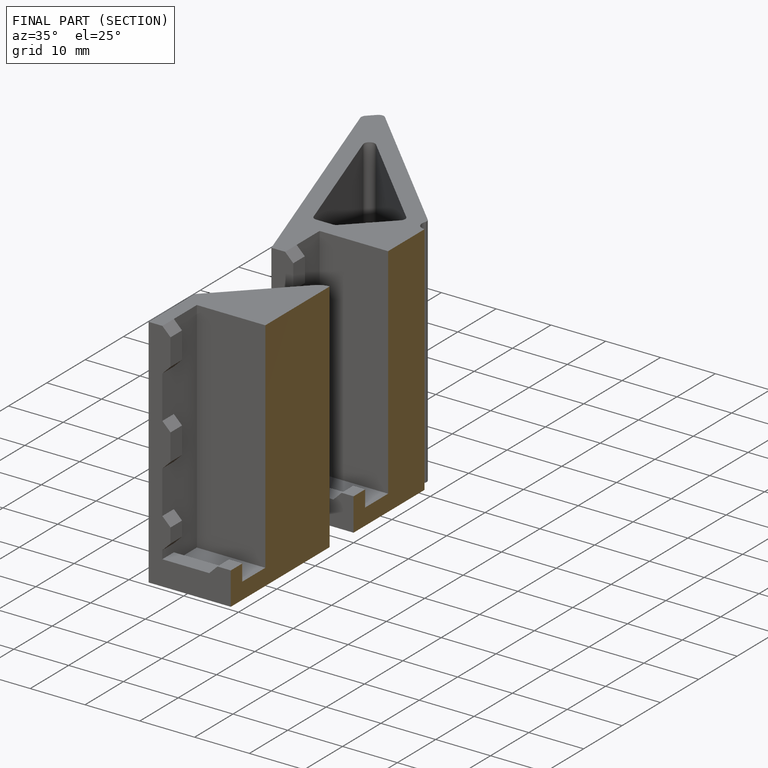
[diagram: finished part — half-section view (interior)]
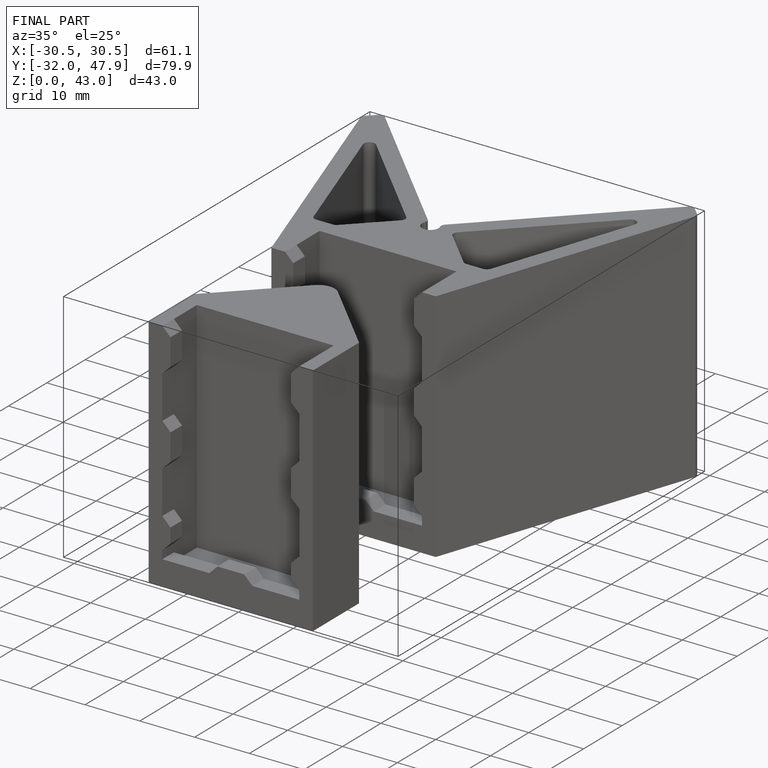
[diagram: finished part — iso view with bounding-box wireframe]
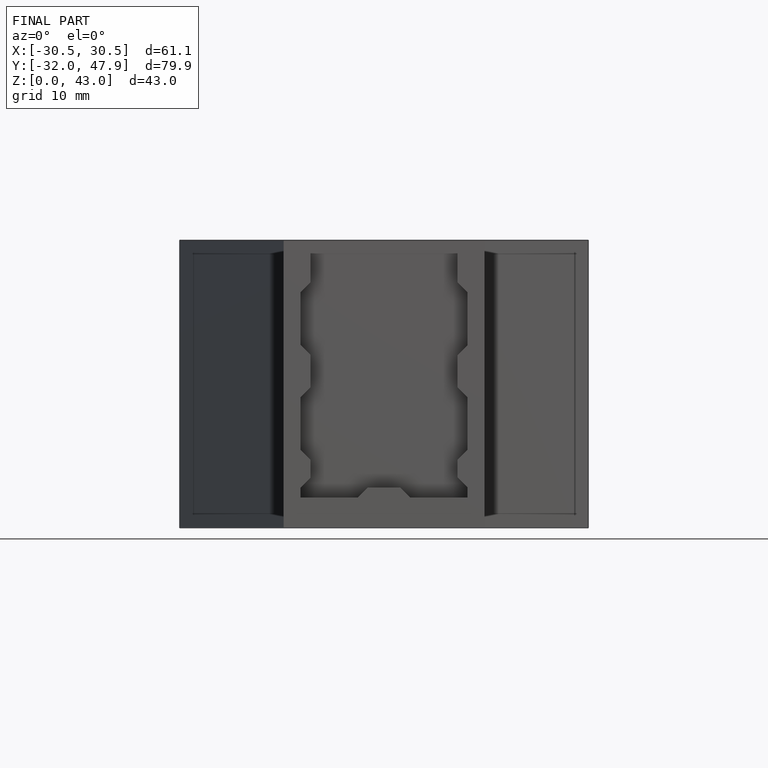
[diagram: finished part — front view with bounding-box wireframe]
